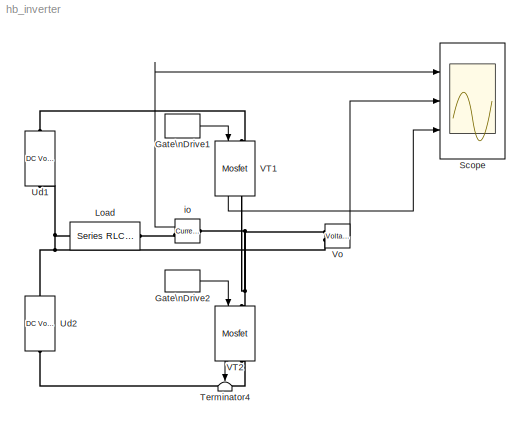
MODEL hb_inverter
KIND model
BLOCK [DiscretePulseGenerator] Gate\nDrive1
  Period = 0.02
  Ports = [0, 1]
  PulseType = Time based
  PulseWidth = 49.5
BLOCK [DiscretePulseGenerator] Gate\nDrive2
  Period = 0.02
  PhaseDelay = 0.01
  Ports = [0, 1]
  PulseType = Time based
  PulseWidth = 49.5
BLOCK [Reference] Load  REF=powerlib/Elements/Series RLC Branch
  Capacitance = inf
  Inductance = 0.01
  LConnTagsString = __new0
  LeftPortType = p1
  Measurements = None
  PhysicalDomain = powersysdomain
  Ports = [0, 0, 0, 0, 0, 1, 1]
  RConnTagsString = __new0
  Resistance = 1
  RightPortType = p1
  SourceBlock = powerlib/Elements/Series RLC Branch
  SourceType = Series RLC Branch
  SubClassName = unknown
BLOCK [Scope] Scope
  DataFormat = StructureWithTime
  NumInputPorts = 3
  Ports = [3]
  SampleTime = 2e-4
  TimeRange = 0.05
  YMax = 100~200~250
  YMin = -100~-200~-50
BLOCK [Terminator] Terminator4
BLOCK [Reference] Ud1  REF=powerlib/Electrical\nSources/DC Voltage Source
  Amplitude = 100
  Measurements = None
  Ports = [0, 0, 0, 0, 0, 1, 1]
  ShowPortLabels = on
  SourceBlock = powerlib/Electrical\nSources/DC Voltage Source
  SourceType = DC Voltage Source
BLOCK [Reference] Ud2  REF=powerlib/Electrical\nSources/DC Voltage Source
  Amplitude = 100
  Measurements = None
  Ports = [0, 0, 0, 0, 0, 1, 1]
  ShowPortLabels = on
  SourceBlock = powerlib/Electrical\nSources/DC Voltage Source
  SourceType = DC Voltage Source
BLOCK [Reference] VT1  REF=powerlib/Power\nElectronics/Mosfet
  Cs = 1e-6
  IC = 0
  Lon = 1e-6
  Measurements = on
  Ports = [1, 1, 0, 0, 0, 1, 1]
  Rd = .01
  Ron = 0.01
  Rs = 10
  ShowPortLabels = on
  SourceBlock = powerlib/Power\nElectronics/Mosfet
  SourceType = Mosfet
BLOCK [Reference] VT2  REF=powerlib/Power\nElectronics/Mosfet
  Cs = 1e-6
  IC = 0
  Lon = 1e-6
  Measurements = on
  Ports = [1, 1, 0, 0, 0, 1, 1]
  Rd = .01
  Ron = 0.01
  Rs = 10
  ShowPortLabels = on
  SourceBlock = powerlib/Power\nElectronics/Mosfet
  SourceType = Mosfet
BLOCK [Reference] Vo  REF=powerlib/Measurements/Voltage Measurement
  OutputType = Complex
  PSBequivalent = 0
  PhasorSimulation = off
  Ports = [0, 1, 0, 0, 0, 2]
  ShowPortLabels = on
  SourceBlock = powerlib/Measurements/Voltage Measurement
  SourceType = Voltage Measurement
BLOCK [Reference] io  REF=powerlib/Measurements/Current Measurement
  OutputType = Complex
  PSBequivalent = 0
  PhasorSimulation = off
  Ports = [0, 1, 0, 0, 0, 1, 1]
  ShowPortLabels = on
  SourceBlock = powerlib/Measurements/Current Measurement
  SourceType = Current Measurement
LINE Gate\nDrive1:1 -> VT1:1
LINE Gate\nDrive2:1 -> VT2:1
LINE VT1:1 -> Scope:3
LINE VT2:1 -> Terminator4:1
LINE Vo:1 -> Scope:2
LINE io:1 -> Scope:1
PLINE Load:LConn1 -- io:RConn1
PNET net1: Load:RConn1 -- Ud1:LConn1 -- Ud2:RConn1 -- Vo:LConn2
PLINE Ud1:RConn1 -- VT1:LConn1
PLINE Ud2:LConn1 -- VT2:RConn1
PNET net2: VT1:RConn1 -- VT2:LConn1 -- Vo:LConn1 -- io:LConn1
note: PNET lines group multi-terminal physical nets as a canonical sorted terminal list (undirected conserving connections); 2-terminal nets keep the pairwise PLINE form
